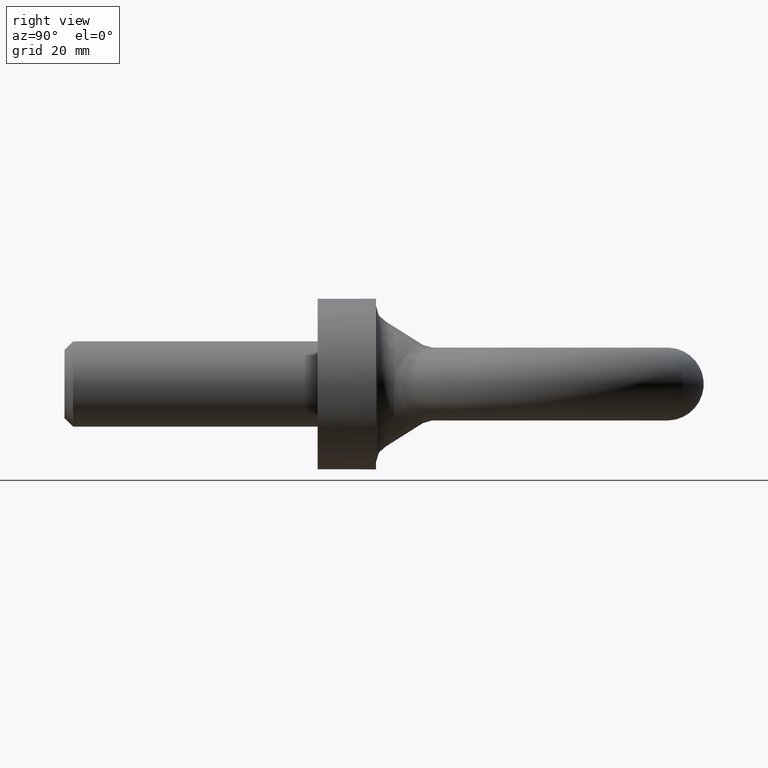
[diagram: clean part render]
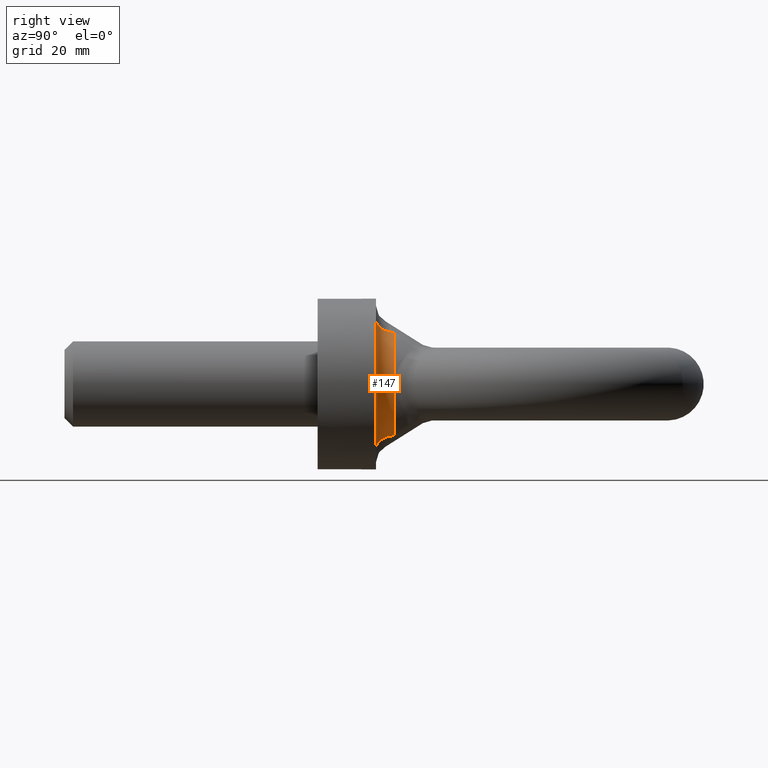
[diagram: same view with one face highlighted and labeled with its STEP entity id]
A machine part, right view. The second image highlights one B-rep face of the part: STEP entity #147.
In plain terms, the highlighted toroidal blend (fillet) surface has major radius 20.25 mm and minor (blend) radius 4.25 mm.
Its self-contained STEP definition (entity closure, byte-faithful):
#80=TOROIDAL_SURFACE('',#618,20.25,4.25);
#147=ADVANCED_FACE('',(#186),#80,.F.);
#186=FACE_OUTER_BOUND('',#224,.T.);
#224=EDGE_LOOP('',(#372,#373,#374,#375));
#372=ORIENTED_EDGE('',*,*,#528,.F.);
#373=ORIENTED_EDGE('',*,*,#507,.T.);
#374=ORIENTED_EDGE('',*,*,#529,.F.);
#375=ORIENTED_EDGE('',*,*,#471,.F.);
#427=VERTEX_POINT('',#773);
#428=VERTEX_POINT('',#775);
#454=VERTEX_POINT('',#1033);
#455=VERTEX_POINT('',#1035);
#471=EDGE_CURVE('',#427,#428,#541,.T.);
#507=EDGE_CURVE('',#455,#454,#552,.T.);
#528=EDGE_CURVE('',#455,#427,#562,.T.);
#529=EDGE_CURVE('',#428,#454,#563,.T.);
#541=CIRCLE('',#578,16.);
#552=CIRCLE('',#603,20.);
#562=CIRCLE('',#616,4.25);
#563=CIRCLE('',#617,4.25);
#578=AXIS2_PLACEMENT_3D('',#774,#642,#643);
#603=AXIS2_PLACEMENT_3D('',#1034,#694,#695);
#616=AXIS2_PLACEMENT_3D('',#1291,#721,#722);
#617=AXIS2_PLACEMENT_3D('',#1292,#723,#724);
#618=AXIS2_PLACEMENT_3D('',#1293,#725,#726);
#642=DIRECTION('',(-3.24990602193221E-18,1.,0.));
#643=DIRECTION('',(1.,0.,0.));
#694=DIRECTION('',(-3.24990602193221E-18,1.,0.));
#695=DIRECTION('',(-1.,0.,0.));
#721=DIRECTION('',(0.752303682594454,2.4449162683855E-18,-0.658816491259002));
#722=DIRECTION('',(-0.658816491259002,0.,-0.752303682594454));
#723=DIRECTION('',(0.752303682594455,2.4449162683855E-18,0.658816491259001));
#724=DIRECTION('',(-0.658816491259001,0.,0.752303682594455));
#725=DIRECTION('',(3.24990602193221E-18,-1.,0.));
#726=DIRECTION('',(1.,0.,0.));
#773=CARTESIAN_POINT('',(10.541063860144,17.8426406871193,12.0368589215113));
#774=CARTESIAN_POINT('',(2.48856981430297E-17,17.8426406871193,0.));
#775=CARTESIAN_POINT('',(10.541063860144,17.8426406871193,-12.0368589215113));
#1033=CARTESIAN_POINT('',(13.17632982518,13.6,-15.0460736518891));
#1034=CARTESIAN_POINT('',(3.86738816609933E-17,13.6,0.));
#1035=CARTESIAN_POINT('',(13.17632982518,13.6,15.0460736518891));
#1291=CARTESIAN_POINT('',(13.3410339479948,17.8426406871193,15.2341495725377));
#1292=CARTESIAN_POINT('',(13.3410339479948,17.8426406871193,-15.2341495725377));
#1293=CARTESIAN_POINT('',(2.48856981430297E-17,17.8426406871193,0.));